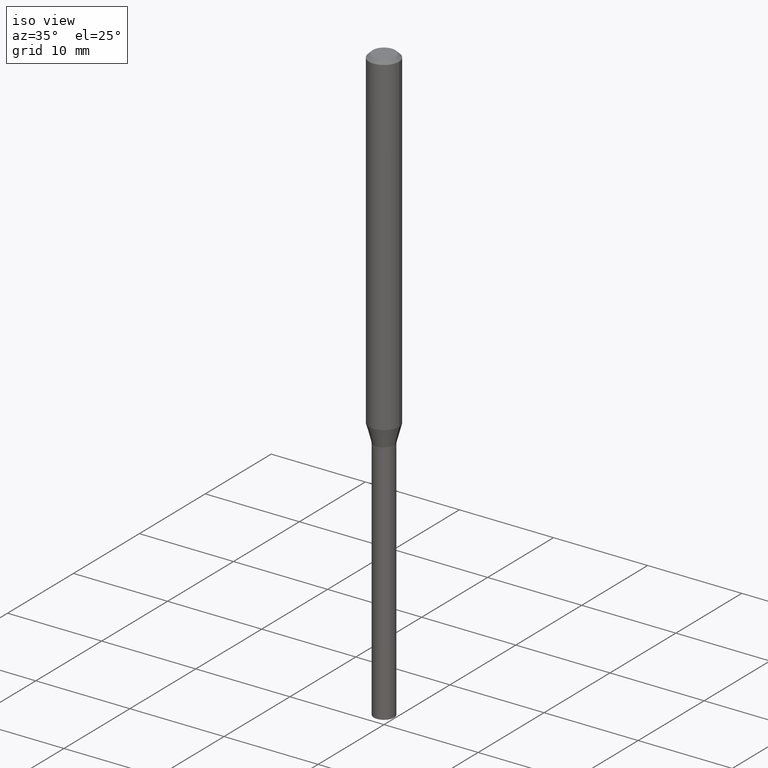
[diagram: clean part render]
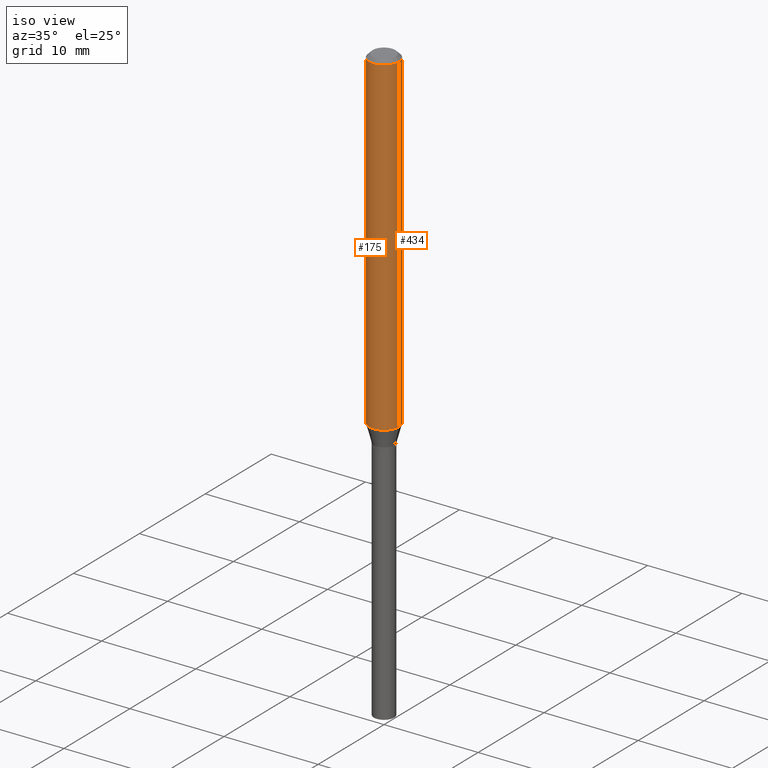
[diagram: same view with one multi-face feature highlighted, each face labeled with its STEP entity id]
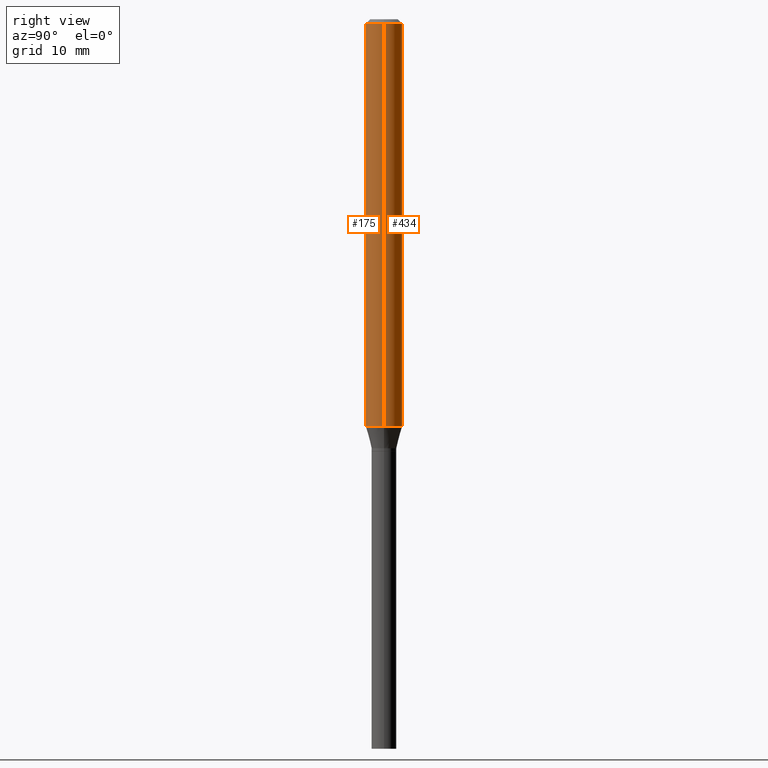
[diagram: same view with one multi-face feature highlighted, each face labeled with its STEP entity id]
A machine part, iso view. The highlighted faces form ONE feature: a constant-radius fillet chain: 2 tangent blend faces with common blend radius 1.5875 mm. The faces share edges in the B-rep.
A second angle (right view) of the same feature is appended — it is thin or edge-on in the first view.
Their STEP definitions:
[1] entity #175 (Cylinder):
#3 = VECTOR ( 'NONE', #42, 39.37007874015748143 ) ;
#8 = DIRECTION ( 'NONE',  ( 1.000000000000000000, -6.982962677686262766E-15, 0.000000000000000000 ) ) ;
#17 = DIRECTION ( 'NONE',  ( 1.000000000000000000, -6.982962677686266711E-15, 0.000000000000000000 ) ) ;
#28 = ORIENTED_EDGE ( 'NONE', *, *, #49, .T. ) ;
#42 = DIRECTION ( 'NONE',  ( -2.445468806185136877E-29, 3.491481338843145188E-15, 1.000000000000000000 ) ) ;
#47 = DIRECTION ( 'NONE',  ( -2.445468806185136597E-29, 3.491481338843145583E-15, 1.000000000000000000 ) ) ;
#49 = EDGE_CURVE ( 'NONE', #442, #228, #311, .T. ) ;
#70 = EDGE_CURVE ( 'NONE', #449, #442, #229, .T. ) ;
#74 = DIRECTION ( 'NONE',  ( -2.445468806185136597E-29, 3.491481338843145583E-15, 1.000000000000000000 ) ) ;
#80 = CYLINDRICAL_SURFACE ( 'NONE', #385, 0.06250000000000000000 ) ;
#104 = ORIENTED_EDGE ( 'NONE', *, *, #70, .T. ) ;
#110 = DIRECTION ( 'NONE',  ( 1.000000000000000000, -6.982962677686266711E-15, 4.876176775795935793E-29 ) ) ;
#117 = CARTESIAN_POINT ( 'NONE',  ( 0.000000000000000000, 0.000000000000000000, 0.000000000000000000 ) ) ;
#119 = LINE ( 'NONE', #428, #412 ) ;
#128 = CARTESIAN_POINT ( 'NONE',  ( 0.06250000000000000000, -4.888073874380388472E-16, -0.01499999999999999944 ) ) ;
#150 = CARTESIAN_POINT ( 'NONE',  ( 3.412306868431998171E-29, -4.871869853094602771E-15, -1.395358983848623335 ) ) ;
#175 = ADVANCED_FACE ( 'NONE', ( #194 ), #80, .T. ) ;
#194 = FACE_OUTER_BOUND ( 'NONE', #391, .T. ) ;
#228 = VERTEX_POINT ( 'NONE', #128 ) ;
#229 = CIRCLE ( 'NONE', #337, 0.06250000000000000000 ) ;
#238 = CARTESIAN_POINT ( 'NONE',  ( 0.06250000000000000000, -4.364351673553916694E-16, 3.047610484872459871E-30 ) ) ;
#239 = DIRECTION ( 'NONE',  ( -2.445468806185136597E-29, 3.491481338843145583E-15, 1.000000000000000000 ) ) ;
#258 = ORIENTED_EDGE ( 'NONE', *, *, #271, .F. ) ;
#263 = CARTESIAN_POINT ( 'NONE',  ( -0.06250000000000000000, -2.018031826738562901E-15, -0.01499999999999999944 ) ) ;
#271 = EDGE_CURVE ( 'NONE', #449, #360, #119, .T. ) ;
#293 = EDGE_CURVE ( 'NONE', #360, #228, #401, .T. ) ;
#311 = LINE ( 'NONE', #238, #3 ) ;
#337 = AXIS2_PLACEMENT_3D ( 'NONE', #150, #47, #8 ) ;
#353 = CARTESIAN_POINT ( 'NONE',  ( -0.06250000000000000000, -4.427780643244540155E-15, -1.395358983848623335 ) ) ;
#360 = VERTEX_POINT ( 'NONE', #263 ) ;
#384 = CARTESIAN_POINT ( 'NONE',  ( 3.668203209277705088E-31, -5.237222008264718399E-17, -0.01499999999999999944 ) ) ;
#385 = AXIS2_PLACEMENT_3D ( 'NONE', #117, #239, #110 ) ;
#388 = ORIENTED_EDGE ( 'NONE', *, *, #293, .F. ) ;
#391 = EDGE_LOOP ( 'NONE', ( #258, #104, #28, #388 ) ) ;
#401 = CIRCLE ( 'NONE', #455, 0.06250000000000000000 ) ;
#412 = VECTOR ( 'NONE', #465, 39.37007874015748143 ) ;
#416 = CARTESIAN_POINT ( 'NONE',  ( 0.06250000000000000000, -5.308305020449994440E-15, -1.395358983848623335 ) ) ;
#428 = CARTESIAN_POINT ( 'NONE',  ( -0.06250000000000000000, 4.440892098500626162E-16, -3.074334431409316114E-30 ) ) ;
#442 = VERTEX_POINT ( 'NONE', #416 ) ;
#449 = VERTEX_POINT ( 'NONE', #353 ) ;
#455 = AXIS2_PLACEMENT_3D ( 'NONE', #384, #74, #17 ) ;
#465 = DIRECTION ( 'NONE',  ( -2.445468806185136877E-29, 3.491481338843145188E-15, 1.000000000000000000 ) ) ;
[2] entity #434 (Cylinder):
#3 = VECTOR ( 'NONE', #42, 39.37007874015748143 ) ;
#42 = DIRECTION ( 'NONE',  ( -2.445468806185136877E-29, 3.491481338843145188E-15, 1.000000000000000000 ) ) ;
#49 = EDGE_CURVE ( 'NONE', #442, #228, #311, .T. ) ;
#54 = ORIENTED_EDGE ( 'NONE', *, *, #212, .F. ) ;
#78 = CIRCLE ( 'NONE', #199, 0.06250000000000000000 ) ;
#82 = CARTESIAN_POINT ( 'NONE',  ( 3.668203209277705088E-31, -5.237222008264718399E-17, -0.01499999999999999944 ) ) ;
#91 = ORIENTED_EDGE ( 'NONE', *, *, #273, .T. ) ;
#119 = LINE ( 'NONE', #428, #412 ) ;
#128 = CARTESIAN_POINT ( 'NONE',  ( 0.06250000000000000000, -4.888073874380388472E-16, -0.01499999999999999944 ) ) ;
#132 = ORIENTED_EDGE ( 'NONE', *, *, #271, .T. ) ;
#134 = AXIS2_PLACEMENT_3D ( 'NONE', #82, #278, #198 ) ;
#171 = DIRECTION ( 'NONE',  ( 1.000000000000000000, -6.982962677686266711E-15, 4.876176775795935793E-29 ) ) ;
#188 = CIRCLE ( 'NONE', #134, 0.06250000000000000000 ) ;
#198 = DIRECTION ( 'NONE',  ( 1.000000000000000000, -6.982962677686266711E-15, 0.000000000000000000 ) ) ;
#199 = AXIS2_PLACEMENT_3D ( 'NONE', #402, #339, #201 ) ;
#201 = DIRECTION ( 'NONE',  ( 1.000000000000000000, -6.982962677686262766E-15, 0.000000000000000000 ) ) ;
#212 = EDGE_CURVE ( 'NONE', #228, #360, #188, .T. ) ;
#228 = VERTEX_POINT ( 'NONE', #128 ) ;
#238 = CARTESIAN_POINT ( 'NONE',  ( 0.06250000000000000000, -4.364351673553916694E-16, 3.047610484872459871E-30 ) ) ;
#255 = FACE_OUTER_BOUND ( 'NONE', #459, .T. ) ;
#263 = CARTESIAN_POINT ( 'NONE',  ( -0.06250000000000000000, -2.018031826738562901E-15, -0.01499999999999999944 ) ) ;
#271 = EDGE_CURVE ( 'NONE', #449, #360, #119, .T. ) ;
#273 = EDGE_CURVE ( 'NONE', #442, #449, #78, .T. ) ;
#278 = DIRECTION ( 'NONE',  ( -2.445468806185136597E-29, 3.491481338843145583E-15, 1.000000000000000000 ) ) ;
#311 = LINE ( 'NONE', #238, #3 ) ;
#339 = DIRECTION ( 'NONE',  ( -2.445468806185136597E-29, 3.491481338843145583E-15, 1.000000000000000000 ) ) ;
#353 = CARTESIAN_POINT ( 'NONE',  ( -0.06250000000000000000, -4.427780643244540155E-15, -1.395358983848623335 ) ) ;
#360 = VERTEX_POINT ( 'NONE', #263 ) ;
#365 = AXIS2_PLACEMENT_3D ( 'NONE', #387, #386, #171 ) ;
#386 = DIRECTION ( 'NONE',  ( -2.445468806185136597E-29, 3.491481338843145583E-15, 1.000000000000000000 ) ) ;
#387 = CARTESIAN_POINT ( 'NONE',  ( 0.000000000000000000, 0.000000000000000000, 0.000000000000000000 ) ) ;
#397 = ORIENTED_EDGE ( 'NONE', *, *, #49, .F. ) ;
#402 = CARTESIAN_POINT ( 'NONE',  ( 3.412306868431998171E-29, -4.871869853094602771E-15, -1.395358983848623335 ) ) ;
#412 = VECTOR ( 'NONE', #465, 39.37007874015748143 ) ;
#416 = CARTESIAN_POINT ( 'NONE',  ( 0.06250000000000000000, -5.308305020449994440E-15, -1.395358983848623335 ) ) ;
#420 = CYLINDRICAL_SURFACE ( 'NONE', #365, 0.06250000000000000000 ) ;
#428 = CARTESIAN_POINT ( 'NONE',  ( -0.06250000000000000000, 4.440892098500626162E-16, -3.074334431409316114E-30 ) ) ;
#434 = ADVANCED_FACE ( 'NONE', ( #255 ), #420, .T. ) ;
#442 = VERTEX_POINT ( 'NONE', #416 ) ;
#449 = VERTEX_POINT ( 'NONE', #353 ) ;
#459 = EDGE_LOOP ( 'NONE', ( #91, #132, #54, #397 ) ) ;
#465 = DIRECTION ( 'NONE',  ( -2.445468806185136877E-29, 3.491481338843145188E-15, 1.000000000000000000 ) ) ;